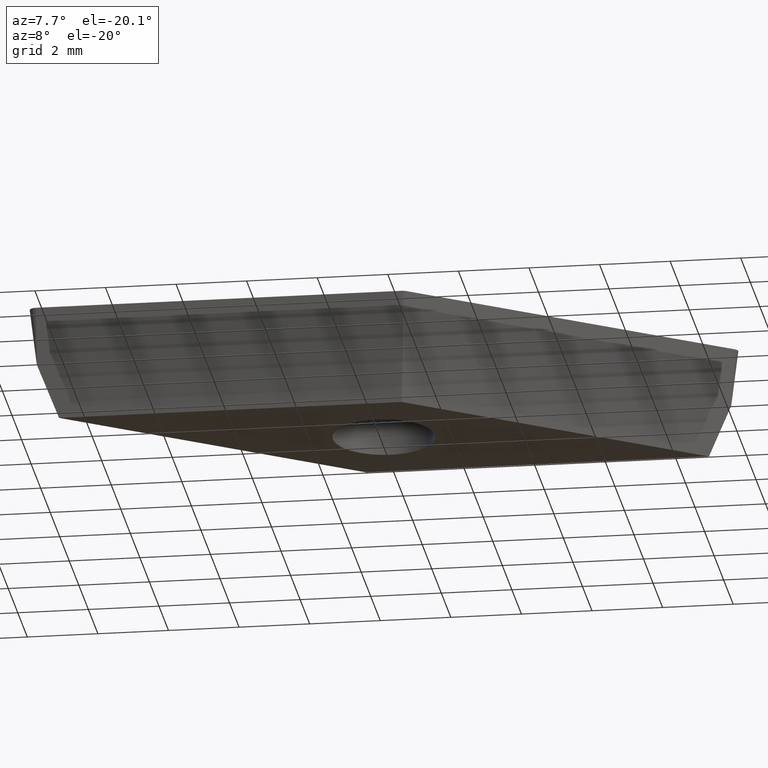
[diagram: clean part render]
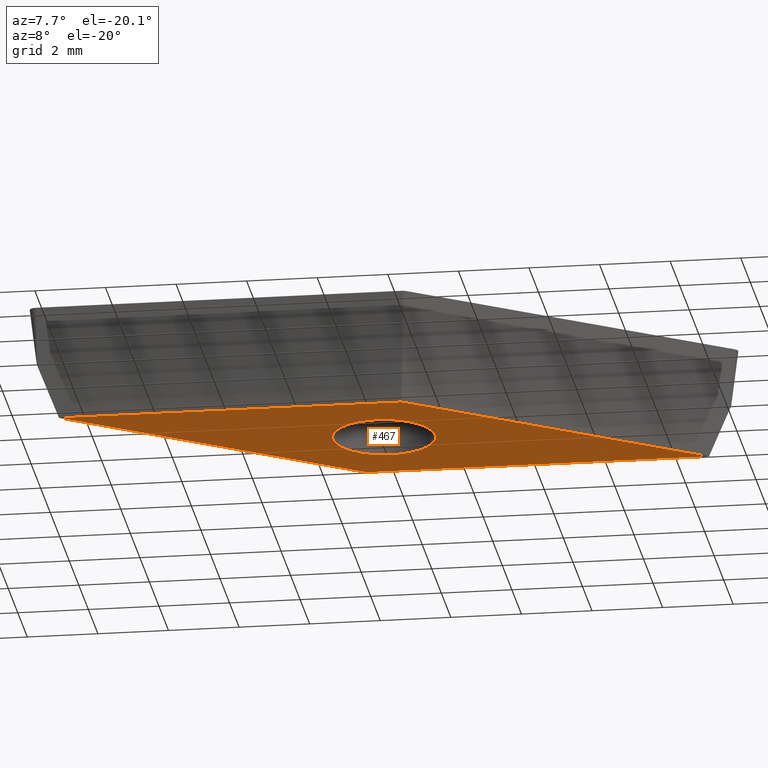
[diagram: same view with one face highlighted and labeled with its STEP entity id]
A machine part, auxiliary view. The second image highlights one B-rep face of the part: STEP entity #467.
In plain terms, the highlighted planar face has unit normal (0, 0, -1).
Its self-contained STEP definition (entity closure, byte-faithful):
#7 = EDGE_CURVE ( 'NONE', #115, #257, #66, .T. ) ;
#14 = PLANE ( 'NONE',  #390 ) ;
#17 = CARTESIAN_POINT ( 'NONE',  ( 0.0000000000000000000, 0.0000000000000000000, -3.180000000000000200 ) ) ;
#45 = EDGE_CURVE ( 'NONE', #257, #53, #403, .T. ) ;
#49 = EDGE_LOOP ( 'NONE', ( #119, #128, #132, #134 ) ) ;
#53 = VERTEX_POINT ( 'NONE', #190 ) ;
#63 = DIRECTION ( 'NONE',  ( 0.0000000000000000000, 0.0000000000000000000, -1.000000000000000000 ) ) ;
#66 = B_SPLINE_CURVE_WITH_KNOTS ( 'NONE', 3,
 ( #327, #287, #87, #322 ),
 .UNSPECIFIED., .F., .F.,
 ( 4, 4 ),
 ( 6.942281208919283300E-019, 0.009709412450913616100 ),
 .UNSPECIFIED. ) ;
#70 = CARTESIAN_POINT ( 'NONE',  ( 0.8779636964512450600, -2.784545096328762800, -3.179999999999999300 ) ) ;
#77 = DIRECTION ( 'NONE',  ( -1.000000000000000000, 0.0000000000000000000, -0.0000000000000000000 ) ) ;
#83 = DIRECTION ( 'NONE',  ( 1.000000000000000000, 0.0000000000000000000, 0.0000000000000000000 ) ) ;
#86 = DIRECTION ( 'NONE',  ( 0.0000000000000000000, 0.0000000000000000000, 1.000000000000000000 ) ) ;
#87 = CARTESIAN_POINT ( 'NONE',  ( 6.180287068457972500, 0.9281816987769934100, -3.180000000000000200 ) ) ;
#88 = CARTESIAN_POINT ( 'NONE',  ( 0.0000000000000000000, 0.0000000000000000000, -3.180000000000000200 ) ) ;
#90 = CARTESIAN_POINT ( 'NONE',  ( -0.8779636964513973800, 2.784545096328761900, -3.180000000000000200 ) ) ;
#106 = VERTEX_POINT ( 'NONE', #455 ) ;
#109 = ORIENTED_EDGE ( 'NONE', *, *, #417, .T. ) ;
#110 = B_SPLINE_CURVE_WITH_KNOTS ( 'NONE', 3,
 ( #90, #220, #233, #234 ),
 .UNSPECIFIED., .F., .F.,
 ( 4, 4 ),
 ( 5.421010862427522200E-019, 0.009709412450913817300 ),
 .UNSPECIFIED. ) ;
#115 = VERTEX_POINT ( 'NONE', #70 ) ;
#116 = CARTESIAN_POINT ( 'NONE',  ( 0.8779636964512450600, -2.784545096328762800, -3.179999999999999300 ) ) ;
#117 = ORIENTED_EDGE ( 'NONE', *, *, #429, .T. ) ;
#119 = ORIENTED_EDGE ( 'NONE', *, *, #276, .F. ) ;
#128 = ORIENTED_EDGE ( 'NONE', *, *, #45, .F. ) ;
#132 = ORIENTED_EDGE ( 'NONE', *, *, #7, .F. ) ;
#134 = ORIENTED_EDGE ( 'NONE', *, *, #262, .F. ) ;
#139 = CARTESIAN_POINT ( 'NONE',  ( 8.831448754462112300, 2.784545096328765900, -3.180000000000000200 ) ) ;
#145 = VERTEX_POINT ( 'NONE', #450 ) ;
#156 = CARTESIAN_POINT ( 'NONE',  ( 2.358507120519768700, 2.784545096328761500, -3.180000000000000600 ) ) ;
#190 = CARTESIAN_POINT ( 'NONE',  ( -0.8779636964513973800, 2.784545096328761900, -3.180000000000000200 ) ) ;
#202 = FACE_OUTER_BOUND ( 'NONE', #49, .T. ) ;
#204 = CARTESIAN_POINT ( 'NONE',  ( 0.0000000000000000000, 0.0000000000000000000, -3.180000000000000200 ) ) ;
#205 = FACE_BOUND ( 'NONE', #254, .T. ) ;
#217 = DIRECTION ( 'NONE',  ( 1.000000000000000000, 0.0000000000000000000, 0.0000000000000000000 ) ) ;
#219 = DIRECTION ( 'NONE',  ( 0.0000000000000000000, 0.0000000000000000000, 1.000000000000000000 ) ) ;
#220 = CARTESIAN_POINT ( 'NONE',  ( -3.529125382455689400, 0.9281816987771024400, -3.179999999999999700 ) ) ;
#231 = CARTESIAN_POINT ( 'NONE',  ( -2.358507120520003200, -2.784545096328761900, -3.180000000000000600 ) ) ;
#233 = CARTESIAN_POINT ( 'NONE',  ( -6.180287068459081800, -0.9281816987758656500, -3.179999999999999700 ) ) ;
#234 = CARTESIAN_POINT ( 'NONE',  ( -8.831448754462506700, -2.784545096328764600, -3.180000000000000600 ) ) ;
#247 = VERTEX_POINT ( 'NONE', #366 ) ;
#248 = CARTESIAN_POINT ( 'NONE',  ( 5.594977937490945400, 2.784545096328763700, -3.180000000000000600 ) ) ;
#254 = EDGE_LOOP ( 'NONE', ( #109, #117 ) ) ;
#257 = VERTEX_POINT ( 'NONE', #364 ) ;
#262 = EDGE_CURVE ( 'NONE', #106, #115, #401, .T. ) ;
#276 = EDGE_CURVE ( 'NONE', #53, #106, #110, .T. ) ;
#287 = CARTESIAN_POINT ( 'NONE',  ( 3.529125382452774400, -0.9281816987732596200, -3.180000000000000200 ) ) ;
#298 = CIRCLE ( 'NONE', #356, 1.450000000000000000 ) ;
#322 = CARTESIAN_POINT ( 'NONE',  ( 8.831448754462112300, 2.784545096328765900, -3.180000000000000200 ) ) ;
#327 = CARTESIAN_POINT ( 'NONE',  ( 0.8779636964512450600, -2.784545096328762800, -3.179999999999999300 ) ) ;
#337 = CARTESIAN_POINT ( 'NONE',  ( -5.594977937491256300, -2.784545096328762800, -3.180000000000000600 ) ) ;
#342 = CARTESIAN_POINT ( 'NONE',  ( -0.8779636964513973800, 2.784545096328761900, -3.180000000000000200 ) ) ;
#356 = AXIS2_PLACEMENT_3D ( 'NONE', #88, #86, #83 ) ;
#361 = CARTESIAN_POINT ( 'NONE',  ( -8.831448754462506700, -2.784545096328764600, -3.180000000000000600 ) ) ;
#363 = AXIS2_PLACEMENT_3D ( 'NONE', #204, #219, #217 ) ;
#364 = CARTESIAN_POINT ( 'NONE',  ( 8.831448754462112300, 2.784545096328765900, -3.180000000000000200 ) ) ;
#366 = CARTESIAN_POINT ( 'NONE',  ( 1.450000000000000000, 0.0000000000000000000, -3.180000000000000200 ) ) ;
#390 = AXIS2_PLACEMENT_3D ( 'NONE', #17, #63, #77 ) ;
#401 = B_SPLINE_CURVE_WITH_KNOTS ( 'NONE', 3,
 ( #361, #337, #231, #116 ),
 .UNSPECIFIED., .F., .F.,
 ( 4, 4 ),
 ( 0.0000000000000000000, 0.009709412450913749600 ),
 .UNSPECIFIED. ) ;
#403 = B_SPLINE_CURVE_WITH_KNOTS ( 'NONE', 3,
 ( #139, #248, #156, #342 ),
 .UNSPECIFIED., .F., .F.,
 ( 4, 4 ),
 ( 0.0000000000000000000, 0.009709412450913508500 ),
 .UNSPECIFIED. ) ;
#417 = EDGE_CURVE ( 'NONE', #247, #145, #463, .T. ) ;
#429 = EDGE_CURVE ( 'NONE', #145, #247, #298, .T. ) ;
#450 = CARTESIAN_POINT ( 'NONE',  ( -1.450000000000000000, 1.775737858763661700E-016, -3.180000000000000200 ) ) ;
#455 = CARTESIAN_POINT ( 'NONE',  ( -8.831448754462506700, -2.784545096328764600, -3.180000000000000600 ) ) ;
#463 = CIRCLE ( 'NONE', #363, 1.450000000000000000 ) ;
#467 = ADVANCED_FACE ( 'NONE', ( #205, #202 ), #14, .T. ) ;